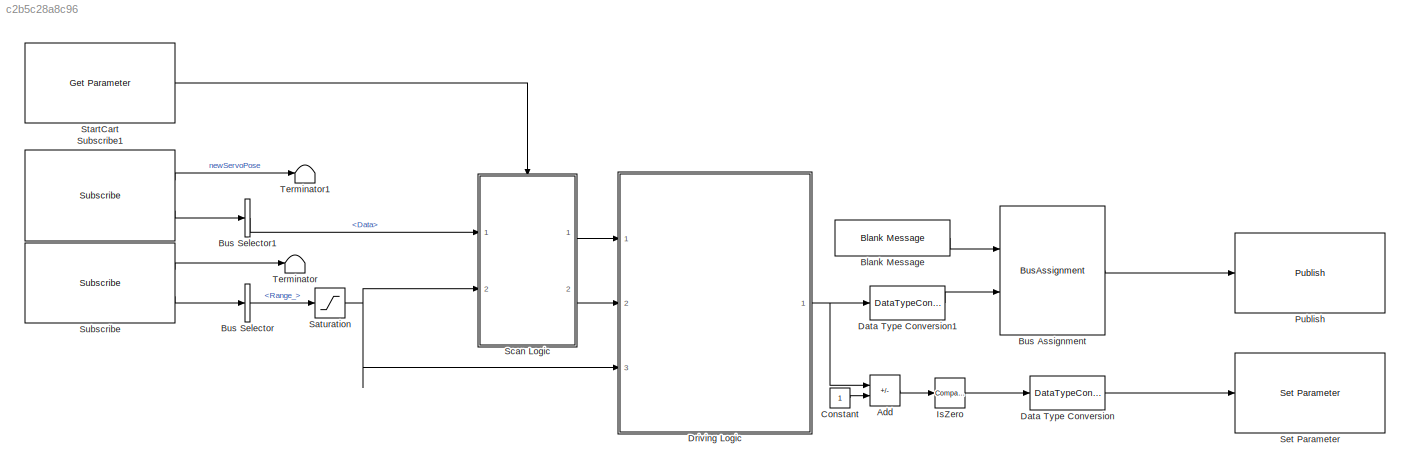
MODEL slx_c2b5c28a8c96
KIND model
CONFIG AbsTol = auto
CONFIG EnableMultiTasking = off
CONFIG FixedStep = 1/15
CONFIG MaxStep = auto
CONFIG MinStep = auto
CONFIG RelTol = 1e-3
CONFIG SampleTimeConstraint = Unconstrained
CONFIG SolverName = FixedStepAuto
CONFIG StartTime = 0.0
CONFIG StopTime = inf
BLOCK [Sum] Add
  IconShape = rectangular
  Inputs = +-
  Ports = [2, 1]
BLOCK [Reference] Blank Message  REF=robotlib/Blank Message
  Ports = [0, 1]
  SourceBlock = robotlib/Blank Message
  SourceProductBaseCode = RR
  SourceType = ROS Blank Message
BLOCK [BusAssignment] Bus Assignment
  AssignedSignals = Data
  Ports = [2, 1]
BLOCK [BusSelector] Bus Selector
  OutputSignals = Range_
  Ports = [1, 1]
BLOCK [BusSelector] Bus Selector1
  OutputSignals = Data
  Ports = [1, 1]
BLOCK [Constant] Constant
BLOCK [DataTypeConversion] Data Type Conversion
  OutDataTypeStr = double
  RndMeth = Floor
  SaturateOnIntegerOverflow = off
BLOCK [DataTypeConversion] Data Type Conversion1
  OutDataTypeStr = int8
  RndMeth = Floor
  SaturateOnIntegerOverflow = off
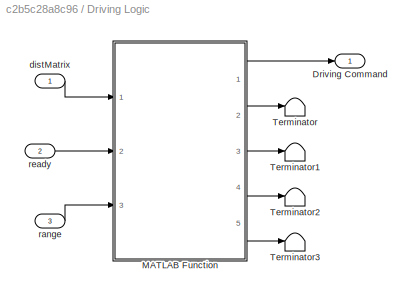
BLOCK [SubSystem] Driving Logic
  Ports = [3, 1]
  RequestExecContextInheritance = off
  TreatAsAtomicUnit = on
BLOCK [Outport] Driving Logic/Driving Command
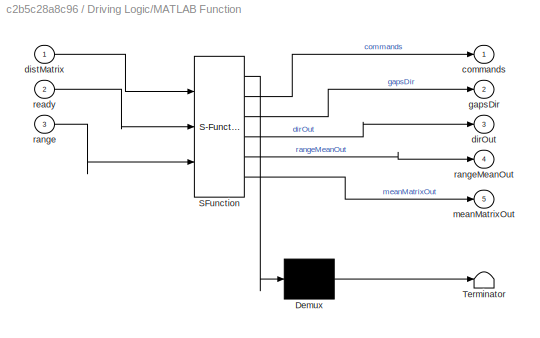
BLOCK [SubSystem] Driving Logic/MATLAB Function
  ErrorFcn = Stateflow.Translate.translate
  PermitHierarchicalResolution = ExplicitOnly
  Ports = [3, 5]
  RequestExecContextInheritance = off
  SFBlockType = MATLAB Function
  TreatAsAtomicUnit = on
BLOCK [Demux] Driving Logic/MATLAB Function/ Demux 
  Outputs = 1
  Ports = [1, 1]
BLOCK [S-Function] Driving Logic/MATLAB Function/ SFunction 
  EnableBusSupport = on
  FunctionName = sf_sfun
  PortCounts = [3 6]
  Ports = [3, 6]
  SFcnIsStateOwnerBlock = off
  SFunctionDeploymentMode = off
  Tag = Stateflow S-Function 1
BLOCK [Terminator] Driving Logic/MATLAB Function/ Terminator 
BLOCK [Outport] Driving Logic/MATLAB Function/commands
BLOCK [Outport] Driving Logic/MATLAB Function/dirOut
  Port = 3
BLOCK [Inport] Driving Logic/MATLAB Function/distMatrix
BLOCK [Outport] Driving Logic/MATLAB Function/gapsDir
  Port = 2
BLOCK [Outport] Driving Logic/MATLAB Function/meanMatrixOut
  Port = 5
BLOCK [Inport] Driving Logic/MATLAB Function/range
  Port = 3
BLOCK [Outport] Driving Logic/MATLAB Function/rangeMeanOut
  Port = 4
BLOCK [Inport] Driving Logic/MATLAB Function/ready
  Port = 2
BLOCK [Terminator] Driving Logic/Terminator
BLOCK [Terminator] Driving Logic/Terminator1
BLOCK [Terminator] Driving Logic/Terminator2
BLOCK [Terminator] Driving Logic/Terminator3
BLOCK [Inport] Driving Logic/distMatrix
BLOCK [Inport] Driving Logic/range
  Port = 3
BLOCK [Inport] Driving Logic/ready
  Port = 2
BLOCK [Reference] IsZero  REF=simulink/Logic and Bit
Operations/Compare
To Zero
  Ports = [1, 1]
  SourceBlock = simulink/Logic and Bit\nOperations/Compare\nTo Zero
  SourceProductBaseCode = SL
  SourceType = Compare To Zero
BLOCK [Reference] Publish  REF=robotlib/Publish
  Ports = [1]
  SourceBlock = robotlib/Publish
  SourceProductBaseCode = RR
  SourceType = ROS Publish
BLOCK [Saturate] Saturation
  LowerLimit = 0
  UpperLimit = 350
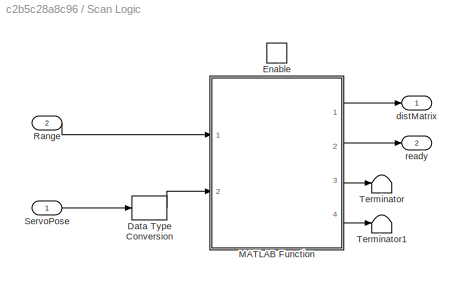
BLOCK [SubSystem] Scan Logic
  Ports = [2, 2, 1]
  RequestExecContextInheritance = off
  TreatAsAtomicUnit = on
BLOCK [DataTypeConversion] Scan Logic/Data Type Conversion
  OutDataTypeStr = double
  RndMeth = Floor
  SaturateOnIntegerOverflow = off
BLOCK [EnablePort] Scan Logic/Enable
  Ports = []
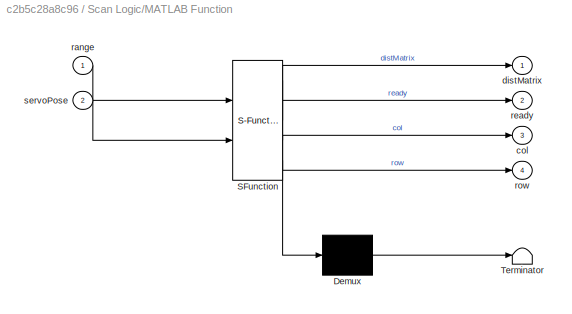
BLOCK [SubSystem] Scan Logic/MATLAB Function
  ErrorFcn = Stateflow.Translate.translate
  PermitHierarchicalResolution = ExplicitOnly
  Ports = [2, 4]
  RequestExecContextInheritance = off
  SFBlockType = MATLAB Function
  TreatAsAtomicUnit = on
BLOCK [Demux] Scan Logic/MATLAB Function/ Demux 
  Outputs = 1
  Ports = [1, 1]
BLOCK [S-Function] Scan Logic/MATLAB Function/ SFunction 
  EnableBusSupport = on
  FunctionName = sf_sfun
  PortCounts = [2 5]
  Ports = [2, 5]
  SFcnIsStateOwnerBlock = off
  SFunctionDeploymentMode = off
  Tag = Stateflow S-Function 2
BLOCK [Terminator] Scan Logic/MATLAB Function/ Terminator 
BLOCK [Outport] Scan Logic/MATLAB Function/col
  Port = 3
BLOCK [Outport] Scan Logic/MATLAB Function/distMatrix
BLOCK [Inport] Scan Logic/MATLAB Function/range
BLOCK [Outport] Scan Logic/MATLAB Function/ready
  Port = 2
BLOCK [Outport] Scan Logic/MATLAB Function/row
  Port = 4
BLOCK [Inport] Scan Logic/MATLAB Function/servoPose
  Port = 2
BLOCK [Inport] Scan Logic/Range
  Port = 2
BLOCK [Inport] Scan Logic/ServoPose
BLOCK [Terminator] Scan Logic/Terminator
BLOCK [Terminator] Scan Logic/Terminator1
BLOCK [Outport] Scan Logic/distMatrix
BLOCK [Outport] Scan Logic/ready
  Port = 2
BLOCK [Reference] Set Parameter  REF=robotlib/Set Parameter
  Ports = [1]
  SourceBlock = robotlib/Set Parameter
  SourceProductBaseCode = RR
  SourceType = ROS Set Parameter
BLOCK [Reference] StartCart  REF=robotlib/Get Parameter
  Ports = [0, 1]
  SourceBlock = robotlib/Get Parameter
  SourceProductBaseCode = RR
  SourceType = ROS Get Parameter
BLOCK [Reference] Subscribe  REF=robotlib/Subscribe
  Ports = [0, 2]
  SourceBlock = robotlib/Subscribe
  SourceProductBaseCode = RR
  SourceType = ROS Subscribe
BLOCK [Reference] Subscribe1  REF=robotlib/Subscribe
  Ports = [0, 2]
  SourceBlock = robotlib/Subscribe
  SourceProductBaseCode = RR
  SourceType = ROS Subscribe
BLOCK [Terminator] Terminator
BLOCK [Terminator] Terminator1
LINE Add:1 -> IsZero:1
LINE Blank Message:1 -> Bus Assignment:1
LINE Bus Assignment:1 -> Publish:1
LINE Bus Selector1:1 -> Scan Logic:1
LINE Bus Selector:1 -> Saturation:1
LINE Constant:1 -> Add:2
LINE Data Type Conversion1:1 -> Bus Assignment:2
LINE Data Type Conversion:1 -> Set Parameter:1
LINE Driving Logic/MATLAB Function:1 -> Driving Logic/Driving Command:1
LINE Driving Logic/MATLAB Function:2 -> Driving Logic/Terminator:1
LINE Driving Logic/MATLAB Function:3 -> Driving Logic/Terminator1:1
LINE Driving Logic/MATLAB Function:4 -> Driving Logic/Terminator2:1
LINE Driving Logic/MATLAB Function:5 -> Driving Logic/Terminator3:1
LINE Driving Logic/distMatrix:1 -> Driving Logic/MATLAB Function:1
LINE Driving Logic/range:1 -> Driving Logic/MATLAB Function:3
LINE Driving Logic/ready:1 -> Driving Logic/MATLAB Function:2
NET Driving Logic:1 -> Add:1, Data Type Conversion1:1
LINE IsZero:1 -> Data Type Conversion:1
NET Saturation:1 -> Driving Logic:3, Scan Logic:2
LINE Scan Logic/Data Type Conversion:1 -> Scan Logic/MATLAB Function:2
LINE Scan Logic/MATLAB Function:1 -> Scan Logic/distMatrix:1
LINE Scan Logic/MATLAB Function:2 -> Scan Logic/ready:1
LINE Scan Logic/MATLAB Function:3 -> Scan Logic/Terminator:1
LINE Scan Logic/MATLAB Function:4 -> Scan Logic/Terminator1:1
LINE Scan Logic/Range:1 -> Scan Logic/MATLAB Function:1
LINE Scan Logic/ServoPose:1 -> Scan Logic/Data Type Conversion:1
LINE Scan Logic:1 -> Driving Logic:1
LINE Scan Logic:2 -> Driving Logic:2
LINE StartCart:1 -> Scan Logic:enable
LINE Subscribe1:1 -> Terminator1:1
LINE Subscribe1:2 -> Bus Selector1:1
LINE Subscribe:1 -> Terminator:1
LINE Subscribe:2 -> Bus Selector:1
note: NET lines group one-source signal fan-out (src -> all destinations, sorted); 1:1 wires keep LINE
CHART Driving Logic/MATLAB Function states=1 transitions=1
  STATE_LABEL 'eML_blk_kernel()'
  STATE_LABEL 'SCRIPT:\nfunction [commands, gapsDir, dirOut, rangeMeanOut, meanMatrixOut]  = fcn(distMatrix, ready, range)%#codegen\npersistent doneScanning counter matrixTmp cmdTmp gapsTmp dirTmp rangeTmp meanMatrixTmp\n\nif isempty(matrixTmp)\n    matrixTmp = zeros(4,51);\nend\nif isempty(meanMatrixTmp)\n    meanMatrixTmp = zeros(1,51);\nend\nif isempty(gapsTmp)\n    gapsTmp = zeros(1,51);\nend\nif isempty(rangeTmp)\n    ra...<+1471ch>'
CHART Scan Logic/MATLAB Function states=1 transitions=1
  STATE_LABEL 'eML_blk_kernel()'
  STATE_LABEL 'SCRIPT:\nfunction [distMatrix, ready, col, row] = fcn(range, servoPose)%#codegen\npersistent rangeMat i j flag\n\nif isempty(rangeMat)\n    rangeMat = zeros(4,51);\nend\n\nif isempty(i)\n    i = 1;\nend\n\nif isempty(flag)\n    flag = 0;\nend\n\npose = servoPose;\nif pose < 36\n    pose = 36;\nend\nif pose > 136\n    pose = 136;\nend\n\nif isempty(j)\n    j = floor((pose - 36 + 2)/2);\nend\n\nif i < 5\n    rangeMat(i,j) = ran...<+366ch>'
CHART  states=0 transitions=0
CHART  states=0 transitions=0
